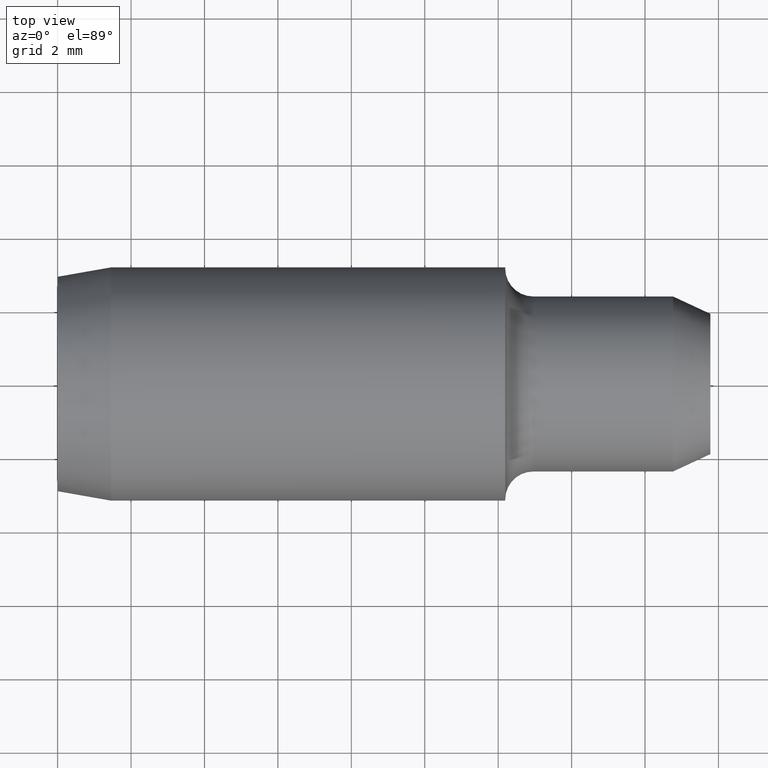
[diagram: clean part render]
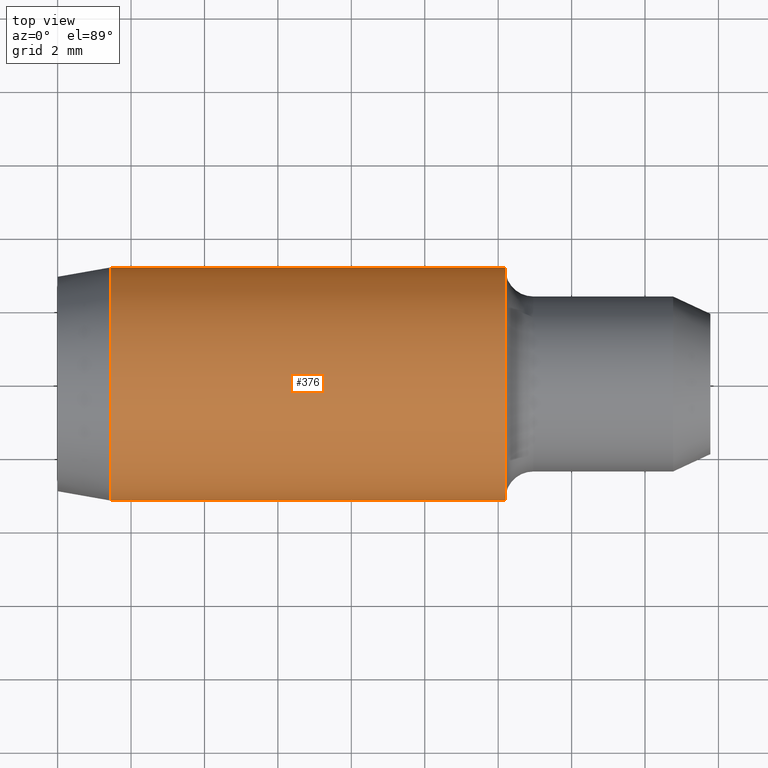
[diagram: same view with one face highlighted and labeled with its STEP entity id]
A machine part, top view. The second image highlights one B-rep face of the part: STEP entity #376.
In plain terms, the highlighted cylindrical surface (partial cylindrical patch) has radius 3.1775 mm, axis along (1, 0, -0).
Its self-contained STEP definition (entity closure, byte-faithful):
#14 = EDGE_CURVE ( 'NONE', #228, #329, #247, .T. ) ;
#22 = EDGE_CURVE ( 'NONE', #329, #351, #307, .T. ) ;
#31 = EDGE_CURVE ( 'NONE', #315, #351, #288, .T. ) ;
#39 = EDGE_CURVE ( 'NONE', #228, #315, #284, .T. ) ;
#54 = AXIS2_PLACEMENT_3D ( 'NONE', #147, #101, #174 ) ;
#65 = AXIS2_PLACEMENT_3D ( 'NONE', #121, #102, #123 ) ;
#71 = AXIS2_PLACEMENT_3D ( 'NONE', #112, #197, #130 ) ;
#79 = CARTESIAN_POINT ( 'NONE',  ( -1.532033145733338200E-017, 0.1250999999999999600, 0.0000000000000000000 ) ) ;
#93 = CARTESIAN_POINT ( 'NONE',  ( 1.532033145733338200E-017, -0.1250999999999999600, 1.532033145733338200E-017 ) ) ;
#101 = DIRECTION ( 'NONE',  ( 1.000000000000000000, 1.224646799147353200E-016, -0.0000000000000000000 ) ) ;
#102 = DIRECTION ( 'NONE',  ( 1.000000000000000000, 1.224646799147353200E-016, -0.0000000000000000000 ) ) ;
#111 = CARTESIAN_POINT ( 'NONE',  ( 0.4799999999999999300, -0.1250999999999998800, 1.532033145733338200E-017 ) ) ;
#112 = CARTESIAN_POINT ( 'NONE',  ( 0.0000000000000000000, 0.0000000000000000000, 0.0000000000000000000 ) ) ;
#121 = CARTESIAN_POINT ( 'NONE',  ( 0.4799999999999999300, 5.878304635907294700E-017, 0.0000000000000000000 ) ) ;
#123 = DIRECTION ( 'NONE',  ( 0.0000000000000000000, 1.000000000000000000, 0.0000000000000000000 ) ) ;
#130 = DIRECTION ( 'NONE',  ( -1.224646799147353000E-016, 1.000000000000000000, 0.0000000000000000000 ) ) ;
#141 = DIRECTION ( 'NONE',  ( 1.000000000000000000, 1.224646799147353200E-016, -0.0000000000000000000 ) ) ;
#147 = CARTESIAN_POINT ( 'NONE',  ( 0.05727994637813868500, 7.014770298731958000E-018, 0.0000000000000000000 ) ) ;
#152 = CARTESIAN_POINT ( 'NONE',  ( 0.05727994637813870600, -0.1250999999999999600, 1.532033145733339100E-017 ) ) ;
#163 = CARTESIAN_POINT ( 'NONE',  ( 0.05727994637813867100, 0.1250999999999999900, 0.0000000000000000000 ) ) ;
#169 = CARTESIAN_POINT ( 'NONE',  ( 0.4799999999999999300, 0.1250999999999999900, 0.0000000000000000000 ) ) ;
#174 = DIRECTION ( 'NONE',  ( -1.364832131127230000E-016, 1.000000000000000000, 0.0000000000000000000 ) ) ;
#192 = DIRECTION ( 'NONE',  ( 1.000000000000000000, 1.224646799147353200E-016, -0.0000000000000000000 ) ) ;
#197 = DIRECTION ( 'NONE',  ( 1.000000000000000000, 1.224646799147353200E-016, -0.0000000000000000000 ) ) ;
#228 = VERTEX_POINT ( 'NONE', #163 ) ;
#247 = CIRCLE ( 'NONE', #54, 0.1250999999999999900 ) ;
#252 = ORIENTED_EDGE ( 'NONE', *, *, #39, .F. ) ;
#267 = VECTOR ( 'NONE', #192, 39.37007874015748100 ) ;
#269 = ORIENTED_EDGE ( 'NONE', *, *, #14, .T. ) ;
#270 = FACE_OUTER_BOUND ( 'NONE', #355, .T. ) ;
#284 = LINE ( 'NONE', #79, #267 ) ;
#288 = CIRCLE ( 'NONE', #65, 0.1250999999999999300 ) ;
#302 = CYLINDRICAL_SURFACE ( 'NONE', #71, 0.1250999999999999600 ) ;
#307 = LINE ( 'NONE', #93, #316 ) ;
#315 = VERTEX_POINT ( 'NONE', #169 ) ;
#316 = VECTOR ( 'NONE', #141, 39.37007874015748100 ) ;
#322 = ORIENTED_EDGE ( 'NONE', *, *, #22, .T. ) ;
#329 = VERTEX_POINT ( 'NONE', #152 ) ;
#351 = VERTEX_POINT ( 'NONE', #111 ) ;
#355 = EDGE_LOOP ( 'NONE', ( #269, #322, #356, #252 ) ) ;
#356 = ORIENTED_EDGE ( 'NONE', *, *, #31, .F. ) ;
#376 = ADVANCED_FACE ( 'NONE', ( #270 ), #302, .T. ) ;